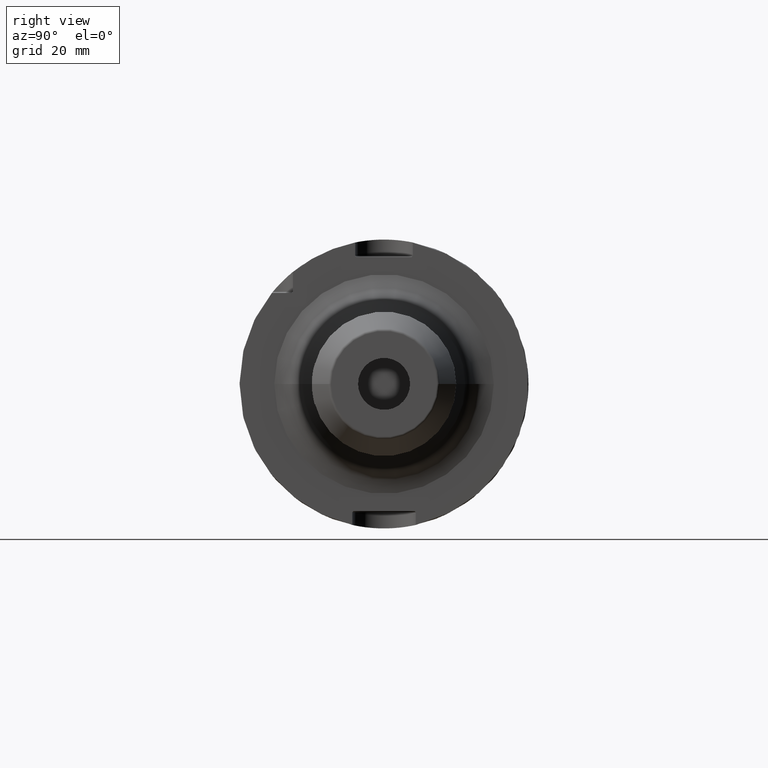
[diagram: clean part render]
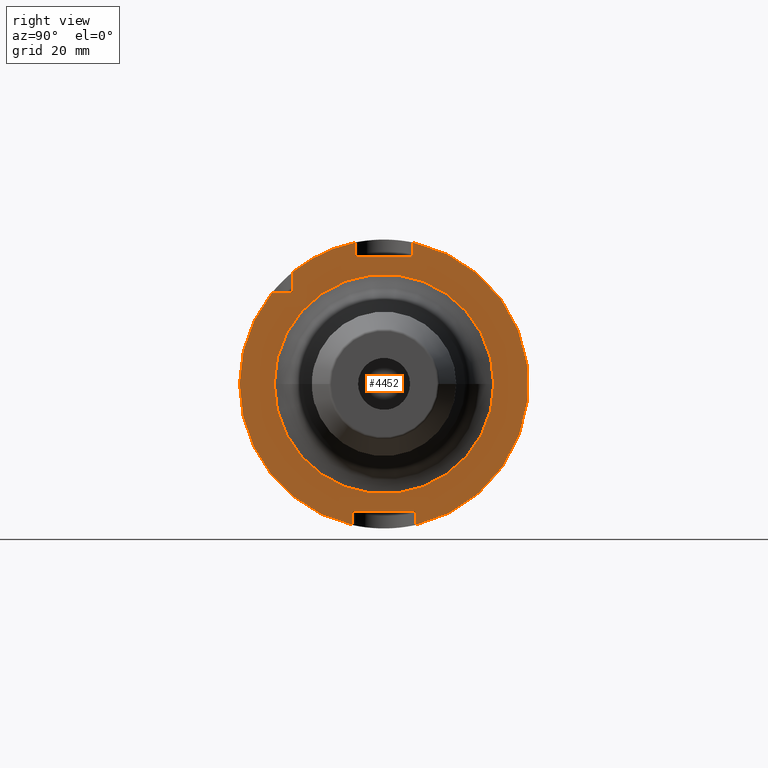
[diagram: same view with one face highlighted and labeled with its STEP entity id]
A machine part, right view. The second image highlights one B-rep face of the part: STEP entity #4452.
In plain terms, the highlighted planar face has unit normal (1, 0, 0).
Its self-contained STEP definition (entity closure, byte-faithful):
#1051=DIRECTION('',(0.E0,-7.071067811865E-1,-7.071067811865E-1));
#1052=VECTOR('',#1051,5.656854249492E-1);
#1053=CARTESIAN_POINT('',(2.9E1,-3.15E1,3.19E1));
#1054=LINE('',#1053,#1052);
#1059=DIRECTION('',(0.E0,1.E0,0.E0));
#1060=VECTOR('',#1059,6.929756630708E0);
#1061=CARTESIAN_POINT('',(2.9E1,-3.882975663071E1,3.15E1));
#1062=LINE('',#1061,#1060);
#1063=DIRECTION('',(0.E0,0.E0,-1.E0));
#1064=VECTOR('',#1063,6.929756630708E0);
#1065=CARTESIAN_POINT('',(2.9E1,-3.15E1,3.882975663071E1));
#1066=LINE('',#1065,#1064);
#1067=DIRECTION('',(0.E0,0.E0,-1.E0));
#1068=VECTOR('',#1067,4.589794855664E0);
#1069=CARTESIAN_POINT('',(2.9E1,-1.E1,4.898979485566E1));
#1070=LINE('',#1069,#1068);
#1071=DIRECTION('',(0.E0,1.E0,0.E0));
#1072=VECTOR('',#1071,1.92E1);
#1073=CARTESIAN_POINT('',(2.9E1,-9.6E0,4.4E1));
#1074=LINE('',#1073,#1072);
#1075=DIRECTION('',(0.E0,0.E0,-1.E0));
#1076=VECTOR('',#1075,4.589794855664E0);
#1077=CARTESIAN_POINT('',(2.9E1,1.E1,4.898979485566E1));
#1078=LINE('',#1077,#1076);
#1079=DIRECTION('',(0.E0,0.E0,1.E0));
#1080=VECTOR('',#1079,4.374993593029E0);
#1081=CARTESIAN_POINT('',(2.9E1,1.1E1,-4.877499359303E1));
#1082=LINE('',#1081,#1080);
#1083=DIRECTION('',(0.E0,-1.E0,0.E0));
#1084=VECTOR('',#1083,2.12E1);
#1085=CARTESIAN_POINT('',(2.9E1,1.06E1,-4.4E1));
#1086=LINE('',#1085,#1084);
#1087=DIRECTION('',(0.E0,0.E0,1.E0));
#1088=VECTOR('',#1087,4.374993593029E0);
#1089=CARTESIAN_POINT('',(2.9E1,-1.1E1,-4.877499359303E1));
#1090=LINE('',#1089,#1088);
#1091=CARTESIAN_POINT('',(2.9E1,0.E0,0.E0));
#1092=DIRECTION('',(1.E0,0.E0,0.E0));
#1093=DIRECTION('',(0.E0,1.E0,0.E0));
#1094=AXIS2_PLACEMENT_3D('',#1091,#1092,#1093);
#1096=CARTESIAN_POINT('',(2.9E1,0.E0,0.E0));
#1097=DIRECTION('',(1.E0,0.E0,0.E0));
#1098=DIRECTION('',(0.E0,-1.E0,0.E0));
#1099=AXIS2_PLACEMENT_3D('',#1096,#1097,#1098);
#1114=CARTESIAN_POINT('',(2.9E1,0.E0,0.E0));
#1115=DIRECTION('',(1.E0,0.E0,0.E0));
#1116=DIRECTION('',(0.E0,2.2E-1,-9.754998718606E-1));
#1117=AXIS2_PLACEMENT_3D('',#1114,#1115,#1116);
#1127=CARTESIAN_POINT('',(2.9E1,0.E0,0.E0));
#1128=DIRECTION('',(1.E0,0.E0,0.E0));
#1129=DIRECTION('',(0.E0,-7.765951326142E-1,6.3E-1));
#1130=AXIS2_PLACEMENT_3D('',#1127,#1128,#1129);
#1144=CARTESIAN_POINT('',(2.9E1,0.E0,0.E0));
#1145=DIRECTION('',(1.E0,0.E0,0.E0));
#1146=DIRECTION('',(0.E0,-2.E-1,9.797958971133E-1));
#1147=AXIS2_PLACEMENT_3D('',#1144,#1145,#1146);
#1251=DIRECTION('',(0.E0,7.071067811866E-1,-7.071067811865E-1));
#1252=VECTOR('',#1251,5.656854249492E-1);
#1253=CARTESIAN_POINT('',(2.9E1,1.06E1,-4.4E1));
#1254=LINE('',#1253,#1252);
#1259=DIRECTION('',(0.E0,7.071067811866E-1,7.071067811865E-1));
#1260=VECTOR('',#1259,5.656854249492E-1);
#1261=CARTESIAN_POINT('',(2.9E1,-1.1E1,-4.44E1));
#1262=LINE('',#1261,#1260);
#1748=DIRECTION('',(0.E0,-7.071067811866E-1,-7.071067811865E-1));
#1749=VECTOR('',#1748,5.656854249492E-1);
#1750=CARTESIAN_POINT('',(2.9E1,1.E1,4.44E1));
#1751=LINE('',#1750,#1749);
#1756=DIRECTION('',(0.E0,-7.071067811866E-1,7.071067811865E-1));
#1757=VECTOR('',#1756,5.656854249492E-1);
#1758=CARTESIAN_POINT('',(2.9E1,-9.6E0,4.4E1));
#1759=LINE('',#1758,#1757);
#3130=CARTESIAN_POINT('',(2.9E1,-9.6E0,4.4E1));
#3131=CARTESIAN_POINT('',(2.9E1,-1.E1,4.44E1));
#3132=VERTEX_POINT('',#3130);
#3133=VERTEX_POINT('',#3131);
#3134=CARTESIAN_POINT('',(2.9E1,1.E1,4.44E1));
#3135=CARTESIAN_POINT('',(2.9E1,9.6E0,4.4E1));
#3136=VERTEX_POINT('',#3134);
#3137=VERTEX_POINT('',#3135);
#3138=CARTESIAN_POINT('',(2.9E1,1.06E1,-4.4E1));
#3139=CARTESIAN_POINT('',(2.9E1,1.1E1,-4.44E1));
#3140=VERTEX_POINT('',#3138);
#3141=VERTEX_POINT('',#3139);
#3142=CARTESIAN_POINT('',(2.9E1,-1.1E1,-4.44E1));
#3143=CARTESIAN_POINT('',(2.9E1,-1.06E1,-4.4E1));
#3144=VERTEX_POINT('',#3142);
#3145=VERTEX_POINT('',#3143);
#3183=CARTESIAN_POINT('',(2.9E1,1.1E1,-4.877499359303E1));
#3185=VERTEX_POINT('',#3183);
#3191=CARTESIAN_POINT('',(2.9E1,-1.1E1,-4.877499359303E1));
#3193=VERTEX_POINT('',#3191);
#3226=CARTESIAN_POINT('',(2.9E1,-1.E1,4.898979485566E1));
#3227=VERTEX_POINT('',#3226);
#3228=CARTESIAN_POINT('',(2.9E1,1.E1,4.898979485566E1));
#3229=VERTEX_POINT('',#3228);
#3232=CARTESIAN_POINT('',(2.9E1,-3.15E1,3.19E1));
#3233=CARTESIAN_POINT('',(2.9E1,-3.19E1,3.15E1));
#3234=VERTEX_POINT('',#3232);
#3235=VERTEX_POINT('',#3233);
#3241=CARTESIAN_POINT('',(2.9E1,-3.882975663071E1,3.15E1));
#3243=VERTEX_POINT('',#3241);
#3245=CARTESIAN_POINT('',(2.9E1,-3.15E1,3.882975663071E1));
#3247=VERTEX_POINT('',#3245);
#3345=CARTESIAN_POINT('',(2.9E1,3.799109804042E1,-9.883243751173E-14));
#3346=CARTESIAN_POINT('',(2.9E1,-3.799109804042E1,1.034850051729E-13));
#3347=VERTEX_POINT('',#3345);
#3348=VERTEX_POINT('',#3346);
#4408=CARTESIAN_POINT('',(2.9E1,0.E0,0.E0));
#4409=DIRECTION('',(1.E0,0.E0,0.E0));
#4410=DIRECTION('',(0.E0,-1.E0,0.E0));
#4411=AXIS2_PLACEMENT_3D('',#4408,#4409,#4410);
#4412=PLANE('',#4411);
#4414=ORIENTED_EDGE('',*,*,#4413,.T.);
#4415=ORIENTED_EDGE('',*,*,#4398,.F.);
#4417=ORIENTED_EDGE('',*,*,#4416,.F.);
#4419=ORIENTED_EDGE('',*,*,#4418,.F.);
#4421=ORIENTED_EDGE('',*,*,#4420,.T.);
#4423=ORIENTED_EDGE('',*,*,#4422,.F.);
#4425=ORIENTED_EDGE('',*,*,#4424,.T.);
#4427=ORIENTED_EDGE('',*,*,#4426,.F.);
#4429=ORIENTED_EDGE('',*,*,#4428,.F.);
#4431=ORIENTED_EDGE('',*,*,#4430,.F.);
#4433=ORIENTED_EDGE('',*,*,#4432,.T.);
#4435=ORIENTED_EDGE('',*,*,#4434,.F.);
#4437=ORIENTED_EDGE('',*,*,#4436,.T.);
#4439=ORIENTED_EDGE('',*,*,#4438,.F.);
#4441=ORIENTED_EDGE('',*,*,#4440,.F.);
#4443=ORIENTED_EDGE('',*,*,#4442,.F.);
#4444=EDGE_LOOP('',(#4414,#4415,#4417,#4419,#4421,#4423,#4425,#4427,#4429,#4431,
#4433,#4435,#4437,#4439,#4441,#4443));
#4445=FACE_OUTER_BOUND('',#4444,.F.);
#4447=ORIENTED_EDGE('',*,*,#4446,.T.);
#4449=ORIENTED_EDGE('',*,*,#4448,.T.);
#4450=EDGE_LOOP('',(#4447,#4449));
#4451=FACE_BOUND('',#4450,.F.);
#4452=ADVANCED_FACE('',(#4445,#4451),#4412,.T.);
#1095=CIRCLE('',#1094,3.799109804042E1);
#1100=CIRCLE('',#1099,3.799109804042E1);
#1118=CIRCLE('',#1117,5.E1);
#1131=CIRCLE('',#1130,5.E1);
#1148=CIRCLE('',#1147,5.E1);
#4398=EDGE_CURVE('',#3234,#3235,#1054,.T.);
#4413=EDGE_CURVE('',#3243,#3235,#1062,.T.);
#4416=EDGE_CURVE('',#3247,#3234,#1066,.T.);
#4418=EDGE_CURVE('',#3227,#3247,#1148,.T.);
#4420=EDGE_CURVE('',#3227,#3133,#1070,.T.);
#4422=EDGE_CURVE('',#3132,#3133,#1759,.T.);
#4424=EDGE_CURVE('',#3132,#3137,#1074,.T.);
#4426=EDGE_CURVE('',#3136,#3137,#1751,.T.);
#4428=EDGE_CURVE('',#3229,#3136,#1078,.T.);
#4430=EDGE_CURVE('',#3185,#3229,#1118,.T.);
#4432=EDGE_CURVE('',#3185,#3141,#1082,.T.);
#4434=EDGE_CURVE('',#3140,#3141,#1254,.T.);
#4436=EDGE_CURVE('',#3140,#3145,#1086,.T.);
#4438=EDGE_CURVE('',#3144,#3145,#1262,.T.);
#4440=EDGE_CURVE('',#3193,#3144,#1090,.T.);
#4442=EDGE_CURVE('',#3243,#3193,#1131,.T.);
#4446=EDGE_CURVE('',#3347,#3348,#1095,.T.);
#4448=EDGE_CURVE('',#3348,#3347,#1100,.T.);